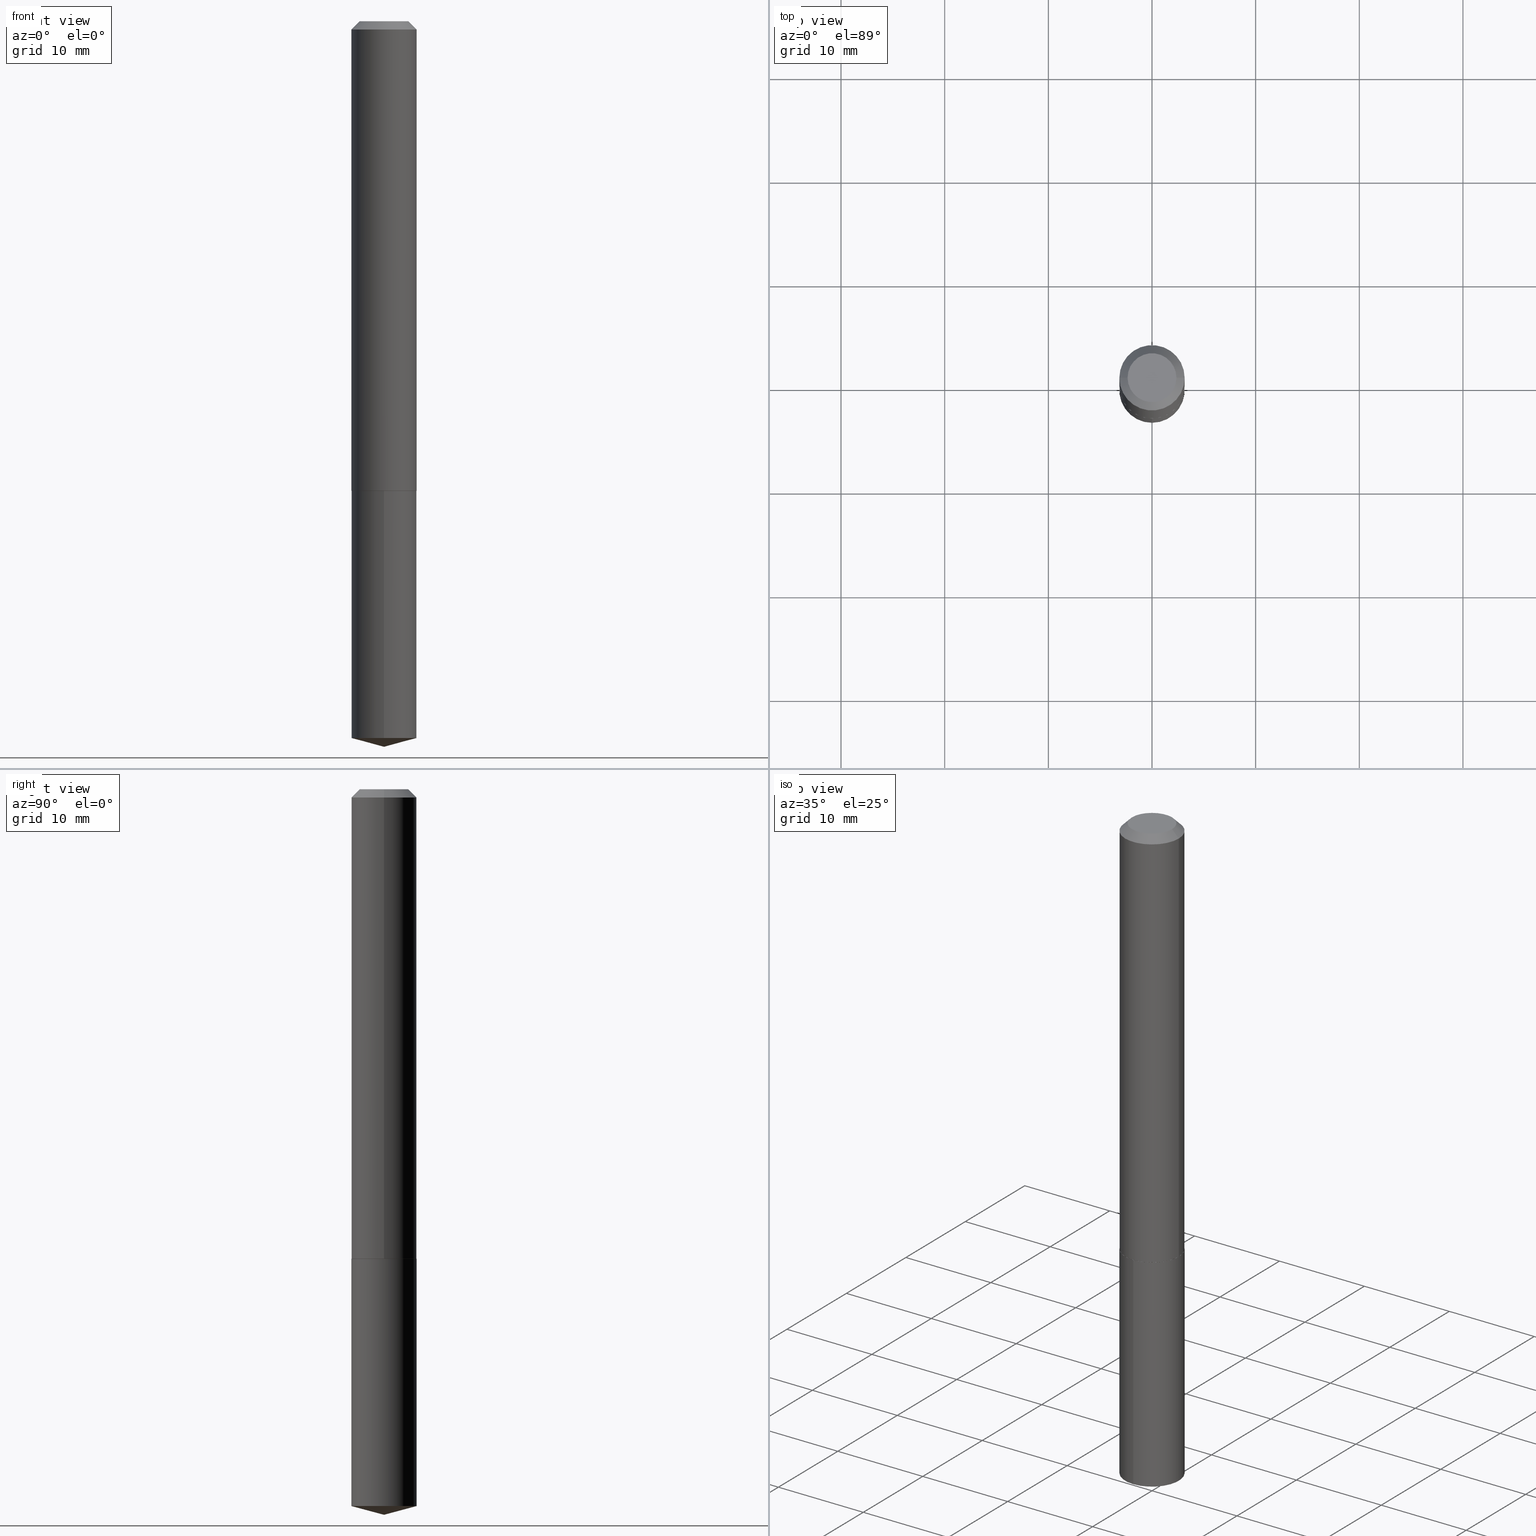
[diagram: canonical four-view strip — front | top / right | iso, engineering-drawing reading convention]
A machine part, canonical four-view strip (front | top / right | iso — engineering-drawing reading convention). The complete STEP part file that produces these views, byte-faithful:
ISO-10303-21;
HEADER;
FILE_DESCRIPTION (( 'STEP AP203' ),
    '1' );
FILE_NAME ('68998.STEP',
    '2024-04-23T14:11:20',
    ( '' ),
    ( '' ),
    'SwSTEP 2.0',
    'SolidWorks 2023',
    '' );
FILE_SCHEMA (( 'CONFIG_CONTROL_DESIGN' ));
ENDSEC;

DATA;
#1 = DIRECTION ( 'NONE',  ( -6.745023994389850177E-15, -0.9659258262890693114, 0.2588190451025165761 ) ) ;
#2 = ORIENTED_EDGE ( 'NONE', *, *, #155, .F. ) ;
#3 = CARTESIAN_POINT ( 'NONE',  ( 0.000000000000000000, 0.000000000000000000, 0.000000000000000000 ) ) ;
#4 = LINE ( 'NONE', #211, #133 ) ;
#6 = ORIENTED_EDGE ( 'NONE', *, *, #193, .T. ) ;
#5 = CONICAL_SURFACE ( 'NONE', #52, 0.1239999999999999991, 0.7853981633974447263 ) ;
#7 = CIRCLE ( 'NONE', #89, 0.1239999999999999991 ) ;
#8 = FACE_OUTER_BOUND ( 'NONE', #333, .T. ) ;
#9 = ORIENTED_EDGE ( 'NONE', *, *, #97, .F. ) ;
#10 = ADVANCED_FACE ( 'NONE', ( #74 ), #127, .F. ) ;
#11 = CONICAL_SURFACE ( 'NONE', #58, 0.1240000000000002073, 0.7853981633967311859 ) ;
#12 = AXIS2_PLACEMENT_3D ( 'NONE', #144, #247, #368 ) ;
#13 = DIRECTION ( 'NONE',  ( -2.445468806185136877E-29, 3.491481338843145188E-15, 1.000000000000000000 ) ) ;
#14 = DATE_AND_TIME ( #322, #43 ) ;
#15 = APPROVAL_DATE_TIME ( #291, #24 ) ;
#16 = CARTESIAN_POINT ( 'NONE',  ( 0.1239999999999999991, -9.598105435625189339E-16, -0.03125000000000022898 ) ) ;
#17 = VERTEX_POINT ( 'NONE', #389 ) ;
#18 = PERSON_AND_ORGANIZATION ( #284, #386 ) ;
#19 = FACE_OUTER_BOUND ( 'NONE', #187, .T. ) ;
#20 = DIRECTION ( 'NONE',  ( -2.445468806185136597E-29, 3.491481338843145583E-15, 1.000000000000000000 ) ) ;
#21 = CYLINDRICAL_SURFACE ( 'NONE', #348, 0.1240000000000000963 ) ;
#22 = DIRECTION ( 'NONE',  ( -6.982962677686265922E-15, -1.000000000000000000, 3.510303681827531176E-15 ) ) ;
#23 = CONICAL_SURFACE ( 'NONE', #376, 146.9311341562595885, 1.308996938995754977 ) ;
#24 = APPROVAL ( #196, 'UNSPECIFIED' ) ;
#25 = AXIS2_PLACEMENT_3D ( 'NONE', #87, #371, #91 ) ;
#26 = ORIENTED_EDGE ( 'NONE', *, *, #221, .T. ) ;
#27 = ORIENTED_EDGE ( 'NONE', *, *, #70, .T. ) ;
#28 = DATE_AND_TIME ( #208, #71 ) ;
#29 = DIRECTION ( 'NONE',  ( -2.445468806185136597E-29, 3.491481338843145583E-15, 1.000000000000000000 ) ) ;
#30 = VERTEX_POINT ( 'NONE', #209 ) ;
#31 = DIRECTION ( 'NONE',  ( -6.982962677686265922E-15, -1.000000000000000000, 4.406206441393973340E-15 ) ) ;
#32 = EDGE_LOOP ( 'NONE', ( #2, #172, #92 ) ) ;
#33 = CIRCLE ( 'NONE', #173, 0.1240000000000002073 ) ;
#34 = DIRECTION ( 'NONE',  ( 2.445468806185136597E-29, -3.491481338843145583E-15, -1.000000000000000000 ) ) ;
#35 = EDGE_LOOP ( 'NONE', ( #136, #27, #163, #182 ) ) ;
#36 = FACE_OUTER_BOUND ( 'NONE', #35, .T. ) ;
#37 = ADVANCED_FACE ( 'NONE', ( #378 ), #139, .T. ) ;
#38 = CARTESIAN_POINT ( 'NONE',  ( 4.361249068950572264E-29, -6.226707819692865054E-15, -1.783399999999999874 ) ) ;
#39 = VERTEX_POINT ( 'NONE', #48 ) ;
#40 = VECTOR ( 'NONE', #261, 39.37007874015748143 ) ;
#41 = UNCERTAINTY_MEASURE_WITH_UNIT (LENGTH_MEASURE( 1.000000000000000082E-05 ), #167, 'distance_accuracy_value', 'NONE');
#42 = AXIS2_PLACEMENT_3D ( 'NONE', #278, #114, #250 ) ;
#43 = LOCAL_TIME ( 10, 11, 20.00000000000000000, #195 ) ;
#44 = FACE_OUTER_BOUND ( 'NONE', #146, .T. ) ;
#45 = APPROVAL ( #126, 'UNSPECIFIED' ) ;
#46 = DIRECTION ( 'NONE',  ( 2.445468806185136597E-29, -3.491481338843145583E-15, -1.000000000000000000 ) ) ;
#47 = PERSON_AND_ORGANIZATION_ROLE ( 'design_supplier' ) ;
#48 = CARTESIAN_POINT ( 'NONE',  ( 0.09274999999999998523, -7.980608664279141043E-16, 2.388061258387889320E-19 ) ) ;
#49 = LENGTH_MEASURE_WITH_UNIT ( LENGTH_MEASURE( 0.02539999999999999897 ), #290 );
#50 = LINE ( 'NONE', #331, #358 ) ;
#51 = CARTESIAN_POINT ( 'NONE',  ( 7.642090019328607917E-31, -1.091087918388491006E-16, -0.03125000000000022898 ) ) ;
#52 = AXIS2_PLACEMENT_3D ( 'NONE', #390, #34, #334 ) ;
#53 = DATE_TIME_ROLE ( 'classification_date' ) ;
#54 = ADVANCED_FACE ( 'NONE', ( #176 ), #23, .T. ) ;
#55 = DIRECTION ( 'NONE',  ( 1.000000000000000000, -6.982962677686267499E-15, 4.876189173827808208E-29 ) ) ;
#56 = DIRECTION ( 'NONE',  ( 1.000000000000000000, -6.982962677686266711E-15, 0.000000000000000000 ) ) ;
#57 = FACE_OUTER_BOUND ( 'NONE', #32, .T. ) ;
#58 = AXIS2_PLACEMENT_3D ( 'NONE', #327, #232, #292 ) ;
#59 = ORIENTED_EDGE ( 'NONE', *, *, #70, .F. ) ;
#60 = CIRCLE ( 'NONE', #288, 0.1235000000000004705 ) ;
#61 = CARTESIAN_POINT ( 'NONE',  ( 4.361249068950572264E-29, -6.226707819692865054E-15, -1.783399999999999874 ) ) ;
#62 = APPLICATION_CONTEXT ( 'configuration controlled 3d designs of mechanical parts and assemblies' ) ;
#63 = CYLINDRICAL_SURFACE ( 'NONE', #103, 0.1239999999999999991 ) ;
#64 = EDGE_CURVE ( 'NONE', #294, #17, #323, .T. ) ;
#65 = VECTOR ( 'NONE', #1, 39.37007874015748854 ) ;
#66 = AXIS2_PLACEMENT_3D ( 'NONE', #285, #156, #124 ) ;
#67 = DATE_TIME_ROLE ( 'creation_date' ) ;
#68 = DIRECTION ( 'NONE',  ( -0.7071067811860403118, 7.493145998868519270E-15, 0.7071067811870545006 ) ) ;
#69 = CYLINDRICAL_SURFACE ( 'NONE', #385, 0.1239999999999999991 ) ;
#70 = EDGE_CURVE ( 'NONE', #243, #30, #50, .T. ) ;
#71 = LOCAL_TIME ( 10, 11, 20.00000000000000000, #363 ) ;
#72 = AXIS2_PLACEMENT_3D ( 'NONE', #3, #29, #138 ) ;
#73 = CALENDAR_DATE ( 2024, 23, 4 ) ;
#74 = FACE_OUTER_BOUND ( 'NONE', #166, .T. ) ;
#75 = ADVANCED_FACE ( 'NONE', ( #19 ), #11, .T. ) ;
#76 = APPLICATION_PROTOCOL_DEFINITION ( 'international standard', 'config_control_design', 1994, #62 ) ;
#77 = DIRECTION ( 'NONE',  ( -2.445509388913140721E-29, 3.491423222066817992E-15, 1.000000000000000000 ) ) ;
#78 = EDGE_LOOP ( 'NONE', ( #90, #245 ) ) ;
#79 = DIRECTION ( 'NONE',  ( -2.445468806185136597E-29, 3.491481338843145583E-15, 1.000000000000000000 ) ) ;
#80 = APPROVAL_ROLE ( '' ) ;
#81 = DIRECTION ( 'NONE',  ( -6.982962677686265922E-15, -1.000000000000000000, 4.406206441393973340E-15 ) ) ;
#82 = AXIS2_PLACEMENT_3D ( 'NONE', #270, #46, #233 ) ;
#83 = CARTESIAN_POINT ( 'NONE',  ( 0.1240000000000002073, -7.090849451056543241E-15, -1.782899999999999929 ) ) ;
#84 = ORIENTED_EDGE ( 'NONE', *, *, #347, .F. ) ;
#85 = EDGE_CURVE ( 'NONE', #39, #234, #264, .T. ) ;
#86 = APPROVAL_PERSON_ORGANIZATION ( #105, #24, #326 ) ;
#87 = CARTESIAN_POINT ( 'NONE',  ( 4.361249068950573385E-29, -6.226707819692866631E-15, -1.783400000000000540 ) ) ;
#88 = DIRECTION ( 'NONE',  ( -2.445468806185136597E-29, 3.491481338843145583E-15, 1.000000000000000000 ) ) ;
#89 = AXIS2_PLACEMENT_3D ( 'NONE', #51, #106, #237 ) ;
#90 = ORIENTED_EDGE ( 'NONE', *, *, #227, .T. ) ;
#91 = DIRECTION ( 'NONE',  ( 1.000000000000000000, -6.982962677686271444E-15, 0.000000000000000000 ) ) ;
#92 = ORIENTED_EDGE ( 'NONE', *, *, #117, .F. ) ;
#93 = EDGE_CURVE ( 'NONE', #184, #30, #340, .T. ) ;
#94 = PLANE ( 'NONE',  #174 ) ;
#95 = ADVANCED_FACE ( 'NONE', ( #355 ), #69, .T. ) ;
#96 = EDGE_CURVE ( 'NONE', #252, #234, #7, .T. ) ;
#97 = EDGE_CURVE ( 'NONE', #128, #294, #149, .T. ) ;
#98 = DIRECTION ( 'NONE',  ( 1.000000000000000000, 0.000000000000000000, 0.000000000000000000 ) ) ;
#99 = LOCAL_TIME ( 10, 11, 20.00000000000000000, #101 ) ;
#100 = CARTESIAN_POINT ( 'NONE',  ( 0.000000000000000000, 0.000000000000000000, 0.000000000000000000 ) ) ;
#101 = COORDINATED_UNIVERSAL_TIME_OFFSET ( 5, 0, .BEHIND. ) ;
#102 = VERTEX_POINT ( 'NONE', #170 ) ;
#103 = AXIS2_PLACEMENT_3D ( 'NONE', #61, #177, #31 ) ;
#104 = CIRCLE ( 'NONE', #66, 0.1239999999999999991 ) ;
#105 = PERSON_AND_ORGANIZATION ( #284, #386 ) ;
#106 = DIRECTION ( 'NONE',  ( -2.445468806185136597E-29, 3.491481338843145583E-15, 1.000000000000000000 ) ) ;
#107 = DIRECTION ( 'NONE',  ( -2.445509388913140721E-29, 3.491423222066817992E-15, 1.000000000000000000 ) ) ;
#108 = CARTESIAN_POINT ( 'NONE',  ( 4.361249068950572264E-29, -6.226707819692865054E-15, -1.783399999999999874 ) ) ;
#109 = ORIENTED_EDGE ( 'NONE', *, *, #97, .T. ) ;
#110 = CARTESIAN_POINT ( 'NONE',  ( 6.739434574431479949E-29, -9.622220548611748666E-15, -2.755900000000000016 ) ) ;
#111 = LINE ( 'NONE', #276, #122 ) ;
#112 = VERTEX_POINT ( 'NONE', #296 ) ;
#113 = DIRECTION ( 'NONE',  ( -2.445468806185136597E-29, 3.491481338843145583E-15, 1.000000000000000000 ) ) ;
#114 = DIRECTION ( 'NONE',  ( -2.445468806185136597E-29, 3.491481338843145583E-15, 1.000000000000000000 ) ) ;
#115 = ORIENTED_EDGE ( 'NONE', *, *, #64, .T. ) ;
#116 = CONICAL_SURFACE ( 'NONE', #12, 146.9311341562595885, 1.308996938995754977 ) ;
#117 = EDGE_CURVE ( 'NONE', #294, #128, #268, .T. ) ;
#118 = ORIENTED_EDGE ( 'NONE', *, *, #353, .F. ) ;
#119 = PRODUCT_DEFINITION_SHAPE ( 'NONE', 'NONE',  #186 ) ;
#120 = EDGE_CURVE ( 'NONE', #30, #184, #33, .T. ) ;
#121 = CC_DESIGN_PERSON_AND_ORGANIZATION_ASSIGNMENT ( #259, #354, ( #265 ) ) ;
#122 = VECTOR ( 'NONE', #215, 39.37007874015748143 ) ;
#123 = DIRECTION ( 'NONE',  ( 2.438088387897960049E-29, -3.491481338843145188E-15, -1.000000000000000000 ) ) ;
#124 = DIRECTION ( 'NONE',  ( 1.000000000000000000, -6.982962677686266711E-15, 0.000000000000000000 ) ) ;
#125 = DIRECTION ( 'NONE',  ( -2.445468806185136877E-29, 3.491481338843145188E-15, 1.000000000000000000 ) ) ;
#126 = APPROVAL_STATUS ( 'not_yet_approved' ) ;
#127 = PLANE ( 'NONE',  #304 ) ;
#128 = VERTEX_POINT ( 'NONE', #141 ) ;
#129 = APPROVAL_DATE_TIME ( #14, #45 ) ;
#130 = ORIENTED_EDGE ( 'NONE', *, *, #120, .T. ) ;
#131 = PERSON_AND_ORGANIZATION ( #284, #386 ) ;
#132 = CIRCLE ( 'NONE', #324, 0.1239999999999999991 ) ;
#133 = VECTOR ( 'NONE', #242, 39.37007874015748854 ) ;
#134 =( NAMED_UNIT ( * ) SI_UNIT ( $, .STERADIAN. ) SOLID_ANGLE_UNIT ( ) );
#135 = CARTESIAN_POINT ( 'NONE',  ( 6.658253188704195551E-29, -9.506111923087129660E-15, -2.722674300138541614 ) ) ;
#136 = ORIENTED_EDGE ( 'NONE', *, *, #312, .T. ) ;
#137 = ADVANCED_FACE ( 'NONE', ( #179 ), #302, .T. ) ;
#138 = DIRECTION ( 'NONE',  ( 1.000000000000000000, -6.982962677686266711E-15, 4.876176775795936353E-29 ) ) ;
#139 = CONICAL_SURFACE ( 'NONE', #82, 0.1239999999999999991, 0.7853981633974447263 ) ;
#140 = ADVANCED_FACE ( 'NONE', ( #36 ), #248, .T. ) ;
#141 = CARTESIAN_POINT ( 'NONE',  ( 8.810729923425908829E-16, 0.1239999999999905067, -2.722674300138542502 ) ) ;
#142 = ORIENTED_EDGE ( 'NONE', *, *, #85, .F. ) ;
#143 = APPROVAL_STATUS ( 'not_yet_approved' ) ;
#144 = CARTESIAN_POINT ( 'NONE',  ( -8.954039025163615507E-28, 1.278354902648321222E-13, 36.61417874015747742 ) ) ;
#145 = ADVANCED_FACE ( 'NONE', ( #342 ), #5, .T. ) ;
#146 = EDGE_LOOP ( 'NONE', ( #118, #130, #241, #366 ) ) ;
#147 = DIRECTION ( 'NONE',  ( -2.445509388913141001E-29, 3.491423222066818386E-15, 1.000000000000000000 ) ) ;
#148 = EDGE_LOOP ( 'NONE', ( #142, #254, #6, #189 ) ) ;
#149 = CIRCLE ( 'NONE', #201, 0.1239999999999999991 ) ;
#150 = DIRECTION ( 'NONE',  ( 2.445509388913140441E-29, -3.491423222066818386E-15, -1.000000000000000000 ) ) ;
#151 = LOCAL_TIME ( 10, 11, 20.00000000000000000, #272 ) ;
#152 = ORIENTED_EDGE ( 'NONE', *, *, #120, .F. ) ;
#153 = CC_DESIGN_PERSON_AND_ORGANIZATION_ASSIGNMENT ( #330, #214, ( #210 ) ) ;
#154 = CARTESIAN_POINT ( 'NONE',  ( 4.361249068950573385E-29, -6.226707819692866631E-15, -1.783400000000000540 ) ) ;
#155 = EDGE_CURVE ( 'NONE', #293, #294, #244, .T. ) ;
#156 = DIRECTION ( 'NONE',  ( -2.445468806185136597E-29, 3.491481338843145583E-15, 1.000000000000000000 ) ) ;
#157 = AXIS2_PLACEMENT_3D ( 'NONE', #319, #380, #199 ) ;
#158 = AXIS2_PLACEMENT_3D ( 'NONE', #159, #295, #98 ) ;
#159 = CARTESIAN_POINT ( 'NONE',  ( 0.000000000000000000, 0.000000000000000000, 0.000000000000000000 ) ) ;
#160 = EDGE_CURVE ( 'NONE', #293, #128, #4, .T. ) ;
#161 = PERSON_AND_ORGANIZATION_ROLE ( 'creator' ) ;
#162 = DIRECTION ( 'NONE',  ( -2.445509388913140721E-29, 3.491423222066817992E-15, 1.000000000000000000 ) ) ;
#163 = ORIENTED_EDGE ( 'NONE', *, *, #93, .F. ) ;
#164 = SECURITY_CLASSIFICATION_LEVEL ( 'unclassified' ) ;
#165 = ORIENTED_EDGE ( 'NONE', *, *, #93, .T. ) ;
#166 = EDGE_LOOP ( 'NONE', ( #311, #335 ) ) ;
#167 =( CONVERSION_BASED_UNIT ( 'INCH', #49 ) LENGTH_UNIT ( ) NAMED_UNIT ( #361 ) );
#168 = CARTESIAN_POINT ( 'NONE',  ( 4.361249068950572264E-29, -6.226707819692865054E-15, -1.783399999999999874 ) ) ;
#169 = CARTESIAN_POINT ( 'NONE',  ( -0.1240000000000000963, 8.810729923425249144E-16, -6.099479511916088052E-30 ) ) ;
#170 = CARTESIAN_POINT ( 'NONE',  ( 0.1235000000000004705, -7.089103710387124893E-15, -1.783400000000000540 ) ) ;
#171 = EDGE_CURVE ( 'NONE', #39, #112, #305, .T. ) ;
#172 = ORIENTED_EDGE ( 'NONE', *, *, #160, .T. ) ;
#173 = AXIS2_PLACEMENT_3D ( 'NONE', #362, #79, #56 ) ;
#174 = AXIS2_PLACEMENT_3D ( 'NONE', #315, #123, #223 ) ;
#175 = PERSON_AND_ORGANIZATION ( #284, #386 ) ;
#176 = FACE_OUTER_BOUND ( 'NONE', #370, .T. ) ;
#177 = DIRECTION ( 'NONE',  ( -2.445509388913140721E-29, 3.491423222066817992E-15, 1.000000000000000000 ) ) ;
#178 = ORIENTED_EDGE ( 'NONE', *, *, #117, .T. ) ;
#179 = FACE_OUTER_BOUND ( 'NONE', #356, .T. ) ;
#180 = ORIENTED_EDGE ( 'NONE', *, *, #235, .F. ) ;
#181 = APPROVAL ( #143, 'UNSPECIFIED' ) ;
#182 = ORIENTED_EDGE ( 'NONE', *, *, #344, .F. ) ;
#183 = LINE ( 'NONE', #219, #369 ) ;
#184 = VERTEX_POINT ( 'NONE', #83 ) ;
#185 = CARTESIAN_POINT ( 'NONE',  ( 4.361249068950572264E-29, -6.226707819692865054E-15, -1.783399999999999874 ) ) ;
#186 = PRODUCT_DEFINITION ( 'UNKNOWN', '', #265, #225 ) ;
#187 = EDGE_LOOP ( 'NONE', ( #59, #328, #329, #152 ) ) ;
#188 = LOCAL_TIME ( 10, 11, 20.00000000000000000, #231 ) ;
#189 = ORIENTED_EDGE ( 'NONE', *, *, #96, .T. ) ;
#190 = CARTESIAN_POINT ( 'NONE',  ( 6.739579324905724760E-29, -9.622013257693944746E-15, -2.755900000000000016 ) ) ;
#191 = ADVANCED_FACE ( 'NONE', ( #303 ), #63, .T. ) ;
#192 = DIRECTION ( 'NONE',  ( 0.7071067811860403118, -2.468850131076945266E-15, 0.7071067811870545006 ) ) ;
#193 = EDGE_CURVE ( 'NONE', #112, #252, #111, .T. ) ;
#194 = AXIS2_PLACEMENT_3D ( 'NONE', #135, #107, #239 ) ;
#195 = COORDINATED_UNIVERSAL_TIME_OFFSET ( 5, 0, .BEHIND. ) ;
#196 = APPROVAL_STATUS ( 'not_yet_approved' ) ;
#197 = CARTESIAN_POINT ( 'NONE',  ( -8.658873720330533455E-16, -0.1240000000000062302, -1.783399999999999430 ) ) ;
#198 = PERSON_AND_ORGANIZATION ( #284, #386 ) ;
#199 = DIRECTION ( 'NONE',  ( 1.000000000000000000, -6.982962677686266711E-15, 0.000000000000000000 ) ) ;
#200 = ORIENTED_EDGE ( 'NONE', *, *, #171, .T. ) ;
#201 = AXIS2_PLACEMENT_3D ( 'NONE', #360, #77, #206 ) ;
#202 = PERSON_AND_ORGANIZATION_ROLE ( 'design_owner' ) ;
#203 = DIRECTION ( 'NONE',  ( -2.438088387897960049E-29, 3.491481338843145188E-15, 1.000000000000000000 ) ) ;
#204 = ORIENTED_EDGE ( 'NONE', *, *, #193, .F. ) ;
#205 = APPLICATION_PROTOCOL_DEFINITION ( 'international standard', 'config_control_design', 1994, #207 ) ;
#206 = DIRECTION ( 'NONE',  ( -6.982962677686265922E-15, -1.000000000000000000, 4.406206441393973340E-15 ) ) ;
#207 = APPLICATION_CONTEXT ( 'configuration controlled 3d designs of mechanical parts and assemblies' ) ;
#208 = CALENDAR_DATE ( 2024, 23, 4 ) ;
#209 = CARTESIAN_POINT ( 'NONE',  ( -0.1240000000000002073, -5.343889086680918537E-15, -1.782899999999999929 ) ) ;
#210 = SECURITY_CLASSIFICATION ( '', '', #164 ) ;
#211 = CARTESIAN_POINT ( 'NONE',  ( 6.739580594196520785E-29, -9.622013257693943168E-15, -2.755900000000000016 ) ) ;
#212 = CARTESIAN_POINT ( 'NONE',  ( 4.360026334547480023E-29, -6.224962079023444339E-15, -1.782899999999999929 ) ) ;
#213 = ORIENTED_EDGE ( 'NONE', *, *, #155, .T. ) ;
#214 = PERSON_AND_ORGANIZATION_ROLE ( 'classification_officer' ) ;
#215 = DIRECTION ( 'NONE',  ( -0.7071067811865450192, 2.468850131082230634E-15, -0.7071067811865500152 ) ) ;
#216 = ORIENTED_EDGE ( 'NONE', *, *, #160, .F. ) ;
#217 = AXIS2_PLACEMENT_3D ( 'NONE', #212, #275, #343 ) ;
#218 = CALENDAR_DATE ( 2024, 23, 4 ) ;
#219 = CARTESIAN_POINT ( 'NONE',  ( 8.810729923425676115E-16, 0.1239999999999937680, -1.783400000000000540 ) ) ;
#220 = APPROVAL_PERSON_ORGANIZATION ( #131, #45, #318 ) ;
#221 = EDGE_CURVE ( 'NONE', #112, #39, #317, .T. ) ;
#222 = FACE_OUTER_BOUND ( 'NONE', #78, .T. ) ;
#223 = DIRECTION ( 'NONE',  ( -1.000000000000000000, 6.982962677686265922E-15, -4.876176775795935793E-29 ) ) ;
#224 = ORIENTED_EDGE ( 'NONE', *, *, #235, .T. ) ;
#225 = DESIGN_CONTEXT ( 'detailed design', #207, 'design' ) ;
#226 = LINE ( 'NONE', #346, #228 ) ;
#227 = EDGE_CURVE ( 'NONE', #17, #367, #132, .T. ) ;
#228 = VECTOR ( 'NONE', #192, 39.37007874015748854 ) ;
#229 = CARTESIAN_POINT ( 'NONE',  ( 1.606525301442647132E-29, -1.017162904390407040E-14, -1.783400000000000096 ) ) ;
#230 = ADVANCED_BREP_SHAPE_REPRESENTATION ( '68998', ( #325, #321, #158 ), #283 ) ;
#231 = COORDINATED_UNIVERSAL_TIME_OFFSET ( 5, 0, .BEHIND. ) ;
#232 = DIRECTION ( 'NONE',  ( -2.445468806185136597E-29, 3.491481338843145583E-15, 1.000000000000000000 ) ) ;
#233 = DIRECTION ( 'NONE',  ( -1.000000000000000000, 6.982962677686266711E-15, 0.000000000000000000 ) ) ;
#234 = VERTEX_POINT ( 'NONE', #337 ) ;
#235 = EDGE_CURVE ( 'NONE', #128, #367, #183, .T. ) ;
#236 = CIRCLE ( 'NONE', #25, 0.1235000000000004705 ) ;
#237 = DIRECTION ( 'NONE',  ( 1.000000000000000000, -6.982962677686266711E-15, 0.000000000000000000 ) ) ;
#238 = CC_DESIGN_DATE_AND_TIME_ASSIGNMENT ( #383, #67, ( #186 ) ) ;
#239 = DIRECTION ( 'NONE',  ( -6.982962677686265922E-15, -1.000000000000000000, 4.406206441393973340E-15 ) ) ;
#240 = DIRECTION ( 'NONE',  ( -2.445509388913140721E-29, 3.491423222066817992E-15, 1.000000000000000000 ) ) ;
#241 = ORIENTED_EDGE ( 'NONE', *, *, #347, .T. ) ;
#242 = DIRECTION ( 'NONE',  ( 6.863315791527704515E-15, 0.9659258262890710878, 0.2588190451025098038 ) ) ;
#243 = VERTEX_POINT ( 'NONE', #308 ) ;
#244 = LINE ( 'NONE', #110, #65 ) ;
#245 = ORIENTED_EDGE ( 'NONE', *, *, #280, .T. ) ;
#246 = SHAPE_DEFINITION_REPRESENTATION ( #119, #230 ) ;
#247 = DIRECTION ( 'NONE',  ( -2.445509388913140721E-29, 3.491423222066817992E-15, 1.000000000000000000 ) ) ;
#248 = CONICAL_SURFACE ( 'NONE', #217, 0.1240000000000002073, 0.7853981633967311859 ) ;
#249 = CLOSED_SHELL ( 'NONE', ( #145, #137, #140, #10, #75, #375, #37, #336 ) ) ;
#250 = DIRECTION ( 'NONE',  ( 1.000000000000000000, -6.982962677686267499E-15, 4.876189173827808208E-29 ) ) ;
#251 = AXIS2_PLACEMENT_3D ( 'NONE', #38, #150, #286 ) ;
#252 = VERTEX_POINT ( 'NONE', #281 ) ;
#253 = PRODUCT ( '68998', '68998', '', ( #350 ) ) ;
#254 = ORIENTED_EDGE ( 'NONE', *, *, #221, .F. ) ;
#255 = CC_DESIGN_APPROVAL ( #24, ( #265 ) ) ;
#256 = ADVANCED_FACE ( 'NONE', ( #57 ), #116, .T. ) ;
#257 = APPROVAL_PERSON_ORGANIZATION ( #175, #181, #80 ) ;
#258 = LINE ( 'NONE', #169, #338 ) ;
#259 = PERSON_AND_ORGANIZATION ( #284, #386 ) ;
#260 = CARTESIAN_POINT ( 'NONE',  ( -8.954039025163615507E-28, 1.278354902648321222E-13, 36.61417874015747742 ) ) ;
#261 = DIRECTION ( 'NONE',  ( 0.7071067811865450192, -7.319954787623246579E-15, -0.7071067811865500152 ) ) ;
#262 = EDGE_CURVE ( 'NONE', #243, #102, #236, .T. ) ;
#263 = ORIENTED_EDGE ( 'NONE', *, *, #313, .F. ) ;
#264 = LINE ( 'NONE', #16, #40 ) ;
#265 = PRODUCT_DEFINITION_FORMATION_WITH_SPECIFIED_SOURCE ( 'ANY', '', #253, .NOT_KNOWN. ) ;
#266 = ADVANCED_FACE ( 'NONE', ( #222 ), #309, .F. ) ;
#267 = CLOSED_SHELL ( 'NONE', ( #191, #256, #54, #95, #266 ) ) ;
#268 = CIRCLE ( 'NONE', #194, 0.1239999999999999991 ) ;
#269 = DIRECTION ( 'NONE',  ( 1.000000000000000000, -6.982962677686266711E-15, 4.876176775795936353E-29 ) ) ;
#270 = CARTESIAN_POINT ( 'NONE',  ( 7.642090019328607917E-31, -1.091087918388491006E-16, -0.03125000000000022898 ) ) ;
#271 = ORIENTED_EDGE ( 'NONE', *, *, #64, .F. ) ;
#272 = COORDINATED_UNIVERSAL_TIME_OFFSET ( 5, 0, .BEHIND. ) ;
#273 = DIRECTION ( 'NONE',  ( 1.000000000000000000, -6.982962677686265922E-15, 4.876176775795935793E-29 ) ) ;
#274 = PRODUCT_RELATED_PRODUCT_CATEGORY ( 'detail', '', ( #253 ) ) ;
#275 = DIRECTION ( 'NONE',  ( -2.445468806185136597E-29, 3.491481338843145583E-15, 1.000000000000000000 ) ) ;
#276 = CARTESIAN_POINT ( 'NONE',  ( -0.1239999999999999991, 7.567785801942479281E-16, -0.03125000000000022898 ) ) ;
#277 = ORIENTED_EDGE ( 'NONE', *, *, #85, .T. ) ;
#278 = CARTESIAN_POINT ( 'NONE',  ( -5.839929314523198503E-48, 8.337871319499114970E-34, 2.388061258337343288E-19 ) ) ;
#279 = ORIENTED_EDGE ( 'NONE', *, *, #353, .T. ) ;
#280 = EDGE_CURVE ( 'NONE', #367, #17, #297, .T. ) ;
#281 = CARTESIAN_POINT ( 'NONE',  ( -0.1239999999999999991, -2.285962443088620918E-15, -0.03125000000000022898 ) ) ;
#282 = EDGE_LOOP ( 'NONE', ( #381, #277, #307, #204 ) ) ;
#283 =( GEOMETRIC_REPRESENTATION_CONTEXT ( 3 ) GLOBAL_UNCERTAINTY_ASSIGNED_CONTEXT ( ( #41 ) ) GLOBAL_UNIT_ASSIGNED_CONTEXT ( ( #167, #351, #134 ) ) REPRESENTATION_CONTEXT ( 'NONE', 'WORKASPACE' ) );
#284 = PERSON ( 'UNSPECIFIED', 'UNSPECIFIED', 'UNSPECIFIED', ('UNSPECIFIED'), ('UNSPECIFIED'), ('UNSPECIFIED') ) ;
#285 = CARTESIAN_POINT ( 'NONE',  ( 7.642090019328607917E-31, -1.091087918388491006E-16, -0.03125000000000022898 ) ) ;
#286 = DIRECTION ( 'NONE',  ( 6.982962677686265922E-15, 1.000000000000000000, -3.491423222066818386E-15 ) ) ;
#287 = ORIENTED_EDGE ( 'NONE', *, *, #227, .F. ) ;
#288 = AXIS2_PLACEMENT_3D ( 'NONE', #154, #88, #310 ) ;
#289 = CARTESIAN_POINT ( 'NONE',  ( 0.1240000000000000963, -8.658873720330977190E-16, 6.046459201986965540E-30 ) ) ;
#290 =( LENGTH_UNIT ( ) NAMED_UNIT ( * ) SI_UNIT ( $, .METRE. ) );
#291 = DATE_AND_TIME ( #73, #188 ) ;
#292 = DIRECTION ( 'NONE',  ( 1.000000000000000000, -6.982962677686266711E-15, 0.000000000000000000 ) ) ;
#293 = VERTEX_POINT ( 'NONE', #190 ) ;
#294 = VERTEX_POINT ( 'NONE', #314 ) ;
#295 = DIRECTION ( 'NONE',  ( 0.000000000000000000, 0.000000000000000000, 1.000000000000000000 ) ) ;
#296 = CARTESIAN_POINT ( 'NONE',  ( -0.09274999999999998523, 7.022241842748244624E-16, 2.388061258290143560E-19 ) ) ;
#297 = CIRCLE ( 'NONE', #349, 0.1239999999999999991 ) ;
#298 = EDGE_LOOP ( 'NONE', ( #178, #224, #287, #271 ) ) ;
#299 = AXIS2_PLACEMENT_3D ( 'NONE', #365, #113, #55 ) ;
#300 = DATE_AND_TIME ( #218, #151 ) ;
#301 = CC_DESIGN_PERSON_AND_ORGANIZATION_ASSIGNMENT ( #198, #47, ( #265 ) ) ;
#302 = CYLINDRICAL_SURFACE ( 'NONE', #72, 0.1240000000000000963 ) ;
#303 = FACE_OUTER_BOUND ( 'NONE', #298, .T. ) ;
#304 = AXIS2_PLACEMENT_3D ( 'NONE', #229, #203, #273 ) ;
#305 = CIRCLE ( 'NONE', #299, 0.09274999999999998523 ) ;
#306 = DIRECTION ( 'NONE',  ( -2.445509388913140721E-29, 3.491423222066817992E-15, 1.000000000000000000 ) ) ;
#307 = ORIENTED_EDGE ( 'NONE', *, *, #313, .T. ) ;
#308 = CARTESIAN_POINT ( 'NONE',  ( -0.1235000000000004705, -5.346538313855029738E-15, -1.783400000000000540 ) ) ;
#309 = PLANE ( 'NONE',  #251 ) ;
#310 = DIRECTION ( 'NONE',  ( 1.000000000000000000, -6.982962677686271444E-15, 0.000000000000000000 ) ) ;
#311 = ORIENTED_EDGE ( 'NONE', *, *, #312, .F. ) ;
#312 = EDGE_CURVE ( 'NONE', #102, #243, #60, .T. ) ;
#313 = EDGE_CURVE ( 'NONE', #234, #252, #104, .T. ) ;
#314 = CARTESIAN_POINT ( 'NONE',  ( -8.658873720330303700E-16, -0.1240000000000095193, -2.722674300138541170 ) ) ;
#315 = CARTESIAN_POINT ( 'NONE',  ( -2.919964657261599251E-48, 4.168935659749557485E-34, 1.194030629168671644E-19 ) ) ;
#316 = LINE ( 'NONE', #289, #341 ) ;
#317 = CIRCLE ( 'NONE', #42, 0.09274999999999998523 ) ;
#318 = APPROVAL_ROLE ( '' ) ;
#319 = CARTESIAN_POINT ( 'NONE',  ( 4.360026334547480023E-29, -6.224962079023444339E-15, -1.782899999999999929 ) ) ;
#320 = CC_DESIGN_SECURITY_CLASSIFICATION ( #210, ( #265 ) ) ;
#321 = MANIFOLD_SOLID_BREP ( 'Body-Move/Copy2[2]', #249 ) ;
#322 = CALENDAR_DATE ( 2024, 23, 4 ) ;
#323 = LINE ( 'NONE', #197, #373 ) ;
#324 = AXIS2_PLACEMENT_3D ( 'NONE', #185, #306, #81 ) ;
#325 = MANIFOLD_SOLID_BREP ( 'Body-Move/Copy2[1]', #267 ) ;
#326 = APPROVAL_ROLE ( '' ) ;
#327 = CARTESIAN_POINT ( 'NONE',  ( 4.360026334547480023E-29, -6.224962079023444339E-15, -1.782899999999999929 ) ) ;
#328 = ORIENTED_EDGE ( 'NONE', *, *, #262, .T. ) ;
#329 = ORIENTED_EDGE ( 'NONE', *, *, #344, .T. ) ;
#330 = PERSON_AND_ORGANIZATION ( #284, #386 ) ;
#331 = CARTESIAN_POINT ( 'NONE',  ( -0.1240000000000002073, -5.343889086680918537E-15, -1.782899999999999929 ) ) ;
#332 = CC_DESIGN_PERSON_AND_ORGANIZATION_ASSIGNMENT ( #18, #202, ( #253 ) ) ;
#333 = EDGE_LOOP ( 'NONE', ( #26, #200 ) ) ;
#334 = DIRECTION ( 'NONE',  ( -1.000000000000000000, 6.982962677686266711E-15, 0.000000000000000000 ) ) ;
#335 = ORIENTED_EDGE ( 'NONE', *, *, #262, .F. ) ;
#336 = ADVANCED_FACE ( 'NONE', ( #8 ), #94, .F. ) ;
#337 = CARTESIAN_POINT ( 'NONE',  ( 0.1239999999999999991, -9.749961638719460308E-16, -0.03125000000000022898 ) ) ;
#339 = EDGE_LOOP ( 'NONE', ( #180, #109, #115, #359 ) ) ;
#338 = VECTOR ( 'NONE', #125, 39.37007874015748143 ) ;
#340 = CIRCLE ( 'NONE', #157, 0.1240000000000002073 ) ;
#341 = VECTOR ( 'NONE', #13, 39.37007874015748143 ) ;
#342 = FACE_OUTER_BOUND ( 'NONE', #282, .T. ) ;
#343 = DIRECTION ( 'NONE',  ( 1.000000000000000000, -6.982962677686266711E-15, 0.000000000000000000 ) ) ;
#344 = EDGE_CURVE ( 'NONE', #102, #184, #226, .T. ) ;
#345 = CC_DESIGN_DATE_AND_TIME_ASSIGNMENT ( #28, #53, ( #210 ) ) ;
#346 = CARTESIAN_POINT ( 'NONE',  ( 0.1240000000000002073, -7.090849451056543241E-15, -1.782899999999999929 ) ) ;
#347 = EDGE_CURVE ( 'NONE', #184, #234, #316, .T. ) ;
#348 = AXIS2_PLACEMENT_3D ( 'NONE', #100, #20, #269 ) ;
#349 = AXIS2_PLACEMENT_3D ( 'NONE', #108, #240, #364 ) ;
#350 = MECHANICAL_CONTEXT ( 'NONE', #62, 'mechanical' ) ;
#351 =( NAMED_UNIT ( * ) PLANE_ANGLE_UNIT ( ) SI_UNIT ( $, .RADIAN. ) );
#352 = DIRECTION ( 'NONE',  ( -2.445509388913141001E-29, 3.491423222066818386E-15, 1.000000000000000000 ) ) ;
#353 = EDGE_CURVE ( 'NONE', #30, #252, #258, .T. ) ;
#354 = PERSON_AND_ORGANIZATION_ROLE ( 'creator' ) ;
#355 = FACE_OUTER_BOUND ( 'NONE', #339, .T. ) ;
#356 = EDGE_LOOP ( 'NONE', ( #165, #279, #263, #84 ) ) ;
#357 = PERSON_AND_ORGANIZATION ( #284, #386 ) ;
#358 = VECTOR ( 'NONE', #68, 39.37007874015748854 ) ;
#359 = ORIENTED_EDGE ( 'NONE', *, *, #280, .F. ) ;
#360 = CARTESIAN_POINT ( 'NONE',  ( 6.658253188704195551E-29, -9.506111923087129660E-15, -2.722674300138541614 ) ) ;
#361 = DIMENSIONAL_EXPONENTS ( 1.000000000000000000, 0.000000000000000000, 0.000000000000000000, 0.000000000000000000, 0.000000000000000000, 0.000000000000000000, 0.000000000000000000 ) ;
#362 = CARTESIAN_POINT ( 'NONE',  ( 4.360026334547480023E-29, -6.224962079023444339E-15, -1.782899999999999929 ) ) ;
#363 = COORDINATED_UNIVERSAL_TIME_OFFSET ( 5, 0, .BEHIND. ) ;
#364 = DIRECTION ( 'NONE',  ( -6.982962677686265922E-15, -1.000000000000000000, 4.406206441393973340E-15 ) ) ;
#365 = CARTESIAN_POINT ( 'NONE',  ( -5.839929314523198503E-48, 8.337871319499114970E-34, 2.388061258337343288E-19 ) ) ;
#366 = ORIENTED_EDGE ( 'NONE', *, *, #96, .F. ) ;
#367 = VERTEX_POINT ( 'NONE', #379 ) ;
#368 = DIRECTION ( 'NONE',  ( -6.982962677686265922E-15, -1.000000000000000000, 3.510303681827531176E-15 ) ) ;
#370 = EDGE_LOOP ( 'NONE', ( #216, #213, #9 ) ) ;
#369 = VECTOR ( 'NONE', #147, 39.37007874015748143 ) ;
#371 = DIRECTION ( 'NONE',  ( -2.445468806185136597E-29, 3.491481338843145583E-15, 1.000000000000000000 ) ) ;
#372 = CC_DESIGN_PERSON_AND_ORGANIZATION_ASSIGNMENT ( #357, #161, ( #186 ) ) ;
#373 = VECTOR ( 'NONE', #352, 39.37007874015748143 ) ;
#374 = CC_DESIGN_APPROVAL ( #181, ( #210 ) ) ;
#375 = ADVANCED_FACE ( 'NONE', ( #44 ), #21, .T. ) ;
#376 = AXIS2_PLACEMENT_3D ( 'NONE', #260, #162, #22 ) ;
#377 = CALENDAR_DATE ( 2024, 23, 4 ) ;
#378 = FACE_OUTER_BOUND ( 'NONE', #148, .T. ) ;
#379 = CARTESIAN_POINT ( 'NONE',  ( 8.810729923425908829E-16, 0.1239999999999937819, -1.783400000000000540 ) ) ;
#380 = DIRECTION ( 'NONE',  ( -2.445468806185136597E-29, 3.491481338843145583E-15, 1.000000000000000000 ) ) ;
#381 = ORIENTED_EDGE ( 'NONE', *, *, #171, .F. ) ;
#382 = CC_DESIGN_APPROVAL ( #45, ( #186 ) ) ;
#383 = DATE_AND_TIME ( #377, #99 ) ;
#384 = DIRECTION ( 'NONE',  ( -6.982962677686265922E-15, -1.000000000000000000, 4.406206441393973340E-15 ) ) ;
#385 = AXIS2_PLACEMENT_3D ( 'NONE', #168, #387, #384 ) ;
#386 = ORGANIZATION ( 'UNSPECIFIED', 'UNSPECIFIED', '' ) ;
#387 = DIRECTION ( 'NONE',  ( -2.445509388913140721E-29, 3.491423222066817992E-15, 1.000000000000000000 ) ) ;
#388 = APPROVAL_DATE_TIME ( #300, #181 ) ;
#389 = CARTESIAN_POINT ( 'NONE',  ( -8.658873720330533455E-16, -0.1240000000000062302, -1.783399999999999430 ) ) ;
#390 = CARTESIAN_POINT ( 'NONE',  ( 7.642090019328607917E-31, -1.091087918388491006E-16, -0.03125000000000022898 ) ) ;
ENDSEC;
END-ISO-10303-21;
